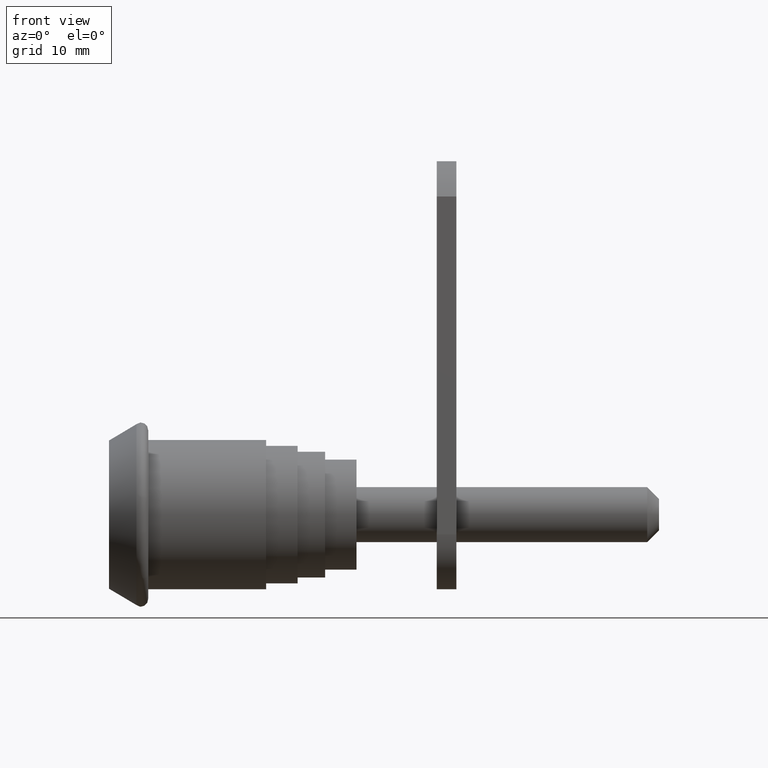
[diagram: clean part render]
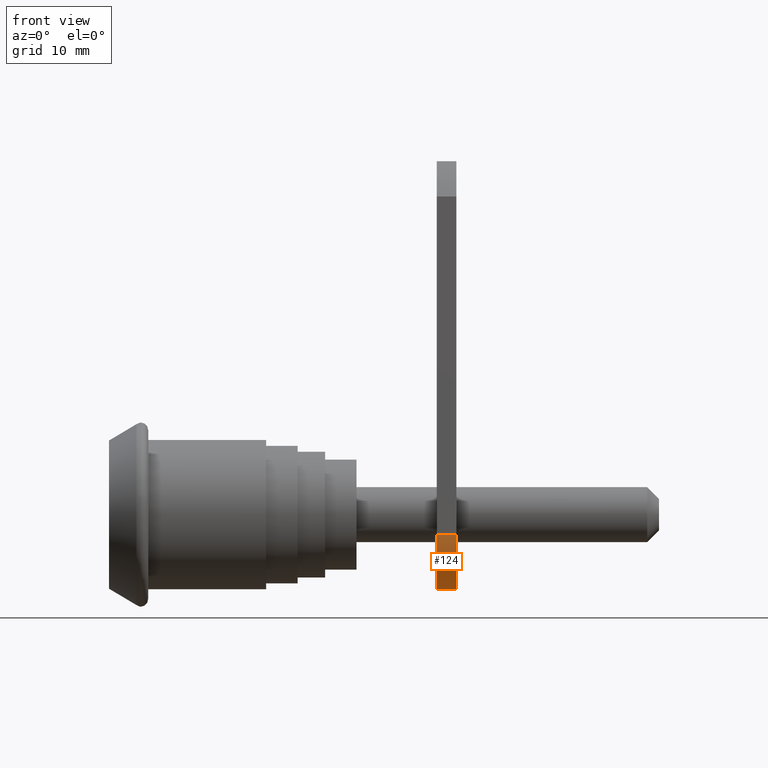
[diagram: same view with one face highlighted and labeled with its STEP entity id]
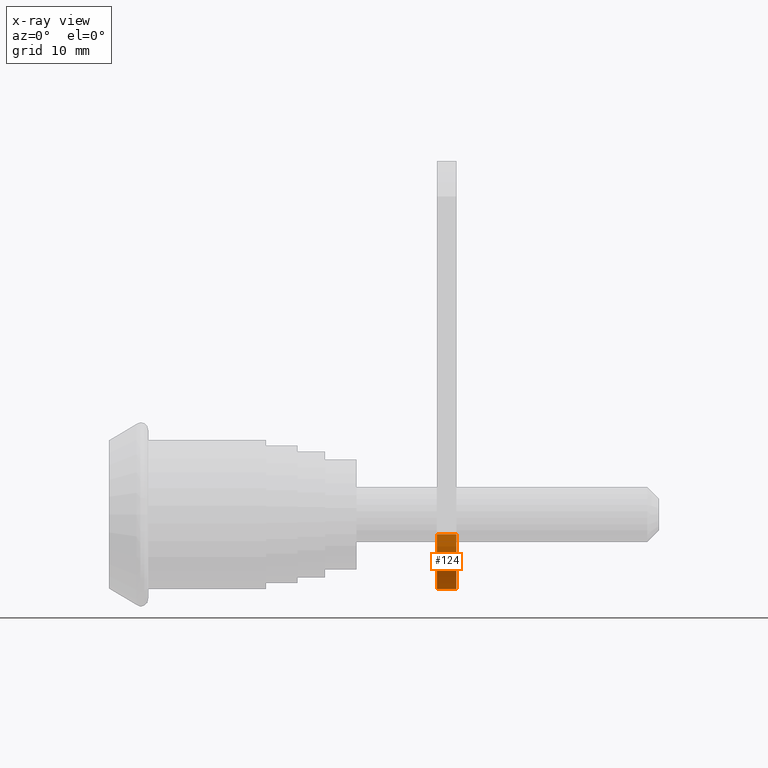
[diagram: x-ray of the same camera — body ghosted, the highlighted face saturated]
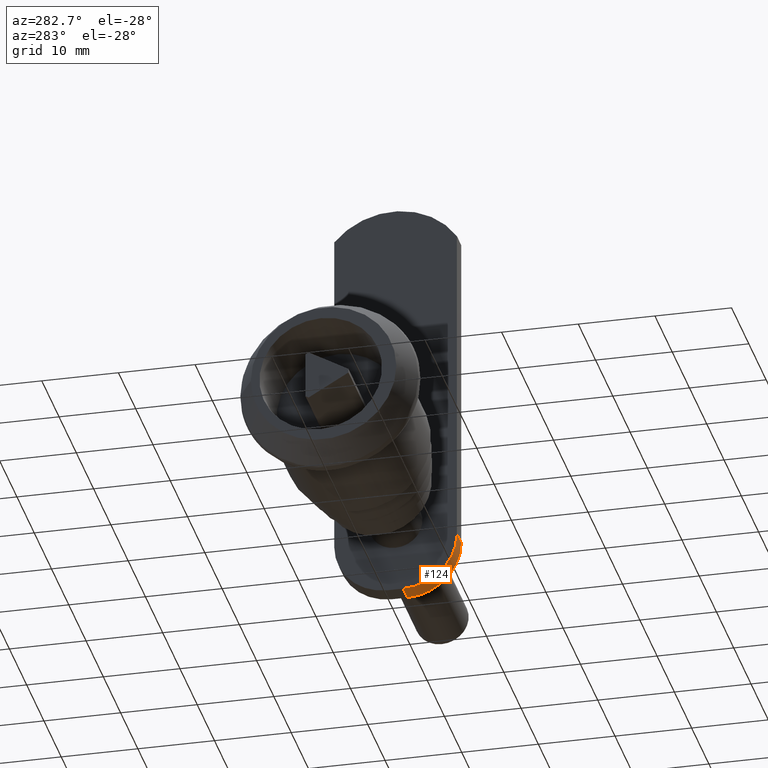
[diagram: same view with one face highlighted and labeled with its STEP entity id]
A machine part, front view. The second image highlights one B-rep face of the part: STEP entity #124.
The next image is the same camera in x-ray: the body ghosted, the highlighted face saturated — about 0% of this face is hidden behind the body in this view.
A second angle (auxiliary view) of the same face is appended — the face is thin or edge-on in the first view.
In plain terms, the highlighted cylindrical surface (partial cylindrical patch) has radius 7 mm, axis along (-1, 0, 0).
Its self-contained STEP definition (entity closure, byte-faithful):
#66=CARTESIAN_POINT('',(41.717976448594527,-0.999999999968168,-9.499999999962002));
#67=VERTEX_POINT('',#66);
#74=CARTESIAN_POINT('',(41.717976448594527,-7.999999999968168,-2.499999999962002));
#75=VERTEX_POINT('',#74);
#76=CARTESIAN_POINT('',(41.717976448594527,-0.999999999968168,-2.499999999962002));
#77=DIRECTION('',(-1.0,0.0,0.0));
#78=DIRECTION('',(0.0,0.0,-1.0));
#79=AXIS2_PLACEMENT_3D('',#76,#77,#78);
#80=CIRCLE('',#79,7.0);
#81=EDGE_CURVE('',#67,#75,#80,.T.);
#93=CARTESIAN_POINT('',(44.217976448584523,-0.999999999968168,-2.499999999962002));
#94=DIRECTION('',(-1.0,0.0,0.0));
#95=DIRECTION('',(0.0,0.0,-1.0));
#96=AXIS2_PLACEMENT_3D('',#93,#94,#95);
#97=CYLINDRICAL_SURFACE('',#96,7.0);
#98=CARTESIAN_POINT('',(44.217976448584523,-0.999999999968168,-9.499999999962002));
#99=VERTEX_POINT('',#98);
#100=CARTESIAN_POINT('',(44.217976448584523,-7.999999999968168,-2.499999999962002));
#101=VERTEX_POINT('',#100);
#102=CARTESIAN_POINT('',(44.217976448584523,-0.999999999968168,-2.499999999962002));
#103=DIRECTION('',(-1.0,0.0,0.0));
#104=DIRECTION('',(0.0,0.0,-1.0));
#105=AXIS2_PLACEMENT_3D('',#102,#103,#104);
#106=CIRCLE('',#105,7.0);
#107=EDGE_CURVE('',#99,#101,#106,.T.);
#108=ORIENTED_EDGE('',*,*,#107,.T.);
#109=CARTESIAN_POINT('',(44.217976448584523,-7.999999999968168,-2.499999999962002));
#110=DIRECTION('',(-1.0,0.0,0.0));
#111=VECTOR('',#110,2.499999999989996);
#112=LINE('',#109,#111);
#113=EDGE_CURVE('',#101,#75,#112,.T.);
#114=ORIENTED_EDGE('',*,*,#113,.T.);
#115=ORIENTED_EDGE('',*,*,#81,.F.);
#116=CARTESIAN_POINT('',(44.217976448584523,-0.999999999968168,-9.499999999962002));
#117=DIRECTION('',(-1.0,0.0,0.0));
#118=VECTOR('',#117,2.499999999989996);
#119=LINE('',#116,#118);
#120=EDGE_CURVE('',#99,#67,#119,.T.);
#121=ORIENTED_EDGE('',*,*,#120,.F.);
#122=EDGE_LOOP('',(#108,#114,#115,#121));
#123=FACE_OUTER_BOUND('',#122,.T.);
#124=ADVANCED_FACE('',(#123),#97,.T.);